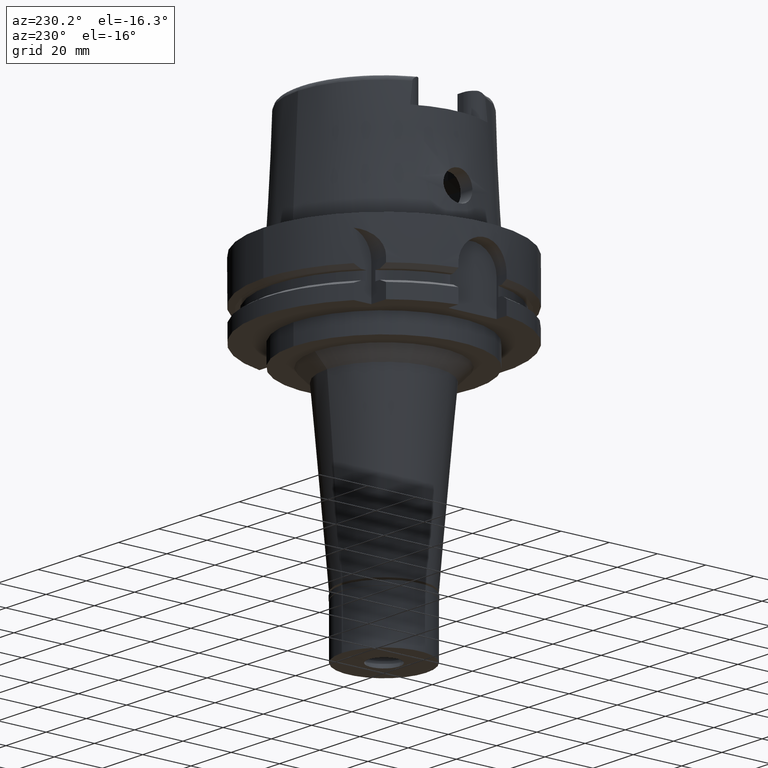
[diagram: clean part render]
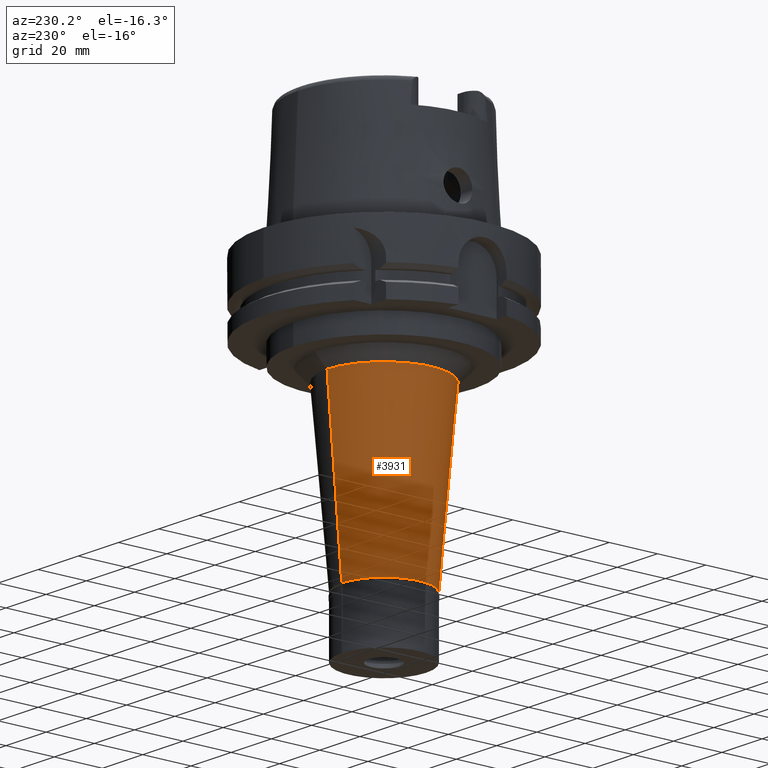
[diagram: same view with one face highlighted and labeled with its STEP entity id]
A machine part, auxiliary view. The second image highlights one B-rep face of the part: STEP entity #3931.
In plain terms, the highlighted conical surface has half-angle 5 deg.
Its self-contained STEP definition (entity closure, byte-faithful):
#99 = VECTOR ( 'NONE', #881, 1000.000000000000227 ) ;
#267 = CARTESIAN_POINT ( 'NONE',  ( 0.0000000000000000000, -17.50000000000000000, -111.6999999999999886 ) ) ;
#280 = AXIS2_PLACEMENT_3D ( 'NONE', #3035, #2576, #1382 ) ;
#400 = ORIENTED_EDGE ( 'NONE', *, *, #4267, .T. ) ;
#534 = VECTOR ( 'NONE', #5401, 1000.000000000000227 ) ;
#644 = DIRECTION ( 'NONE',  ( 0.0000000000000000000, 0.0000000000000000000, -1.000000000000000000 ) ) ;
#881 = DIRECTION ( 'NONE',  ( 0.0000000000000000000, -0.08715574274768382590, -0.9961946980917432137 ) ) ;
#1056 = DIRECTION ( 'NONE',  ( 0.0000000000000000000, 0.0000000000000000000, 1.000000000000000000 ) ) ;
#1071 = CARTESIAN_POINT ( 'NONE',  ( 0.0000000000000000000, 0.0000000000000000000, -42.00000000000000000 ) ) ;
#1353 = VERTEX_POINT ( 'NONE', #4544 ) ;
#1382 = DIRECTION ( 'NONE',  ( 0.0000000000000000000, 1.000000000000000000, 0.0000000000000000000 ) ) ;
#1664 = EDGE_LOOP ( 'NONE', ( #5490, #5573, #400, #4047 ) ) ;
#2075 = CARTESIAN_POINT ( 'NONE',  ( 0.0000000000000000000, 17.50000000000000000, -111.6999999999999886 ) ) ;
#2081 = AXIS2_PLACEMENT_3D ( 'NONE', #1071, #644, #4099 ) ;
#2168 = VERTEX_POINT ( 'NONE', #5538 ) ;
#2455 = CIRCLE ( 'NONE', #2081, 23.59795984775999855 ) ;
#2576 = DIRECTION ( 'NONE',  ( 0.0000000000000000000, 0.0000000000000000000, 1.000000000000000000 ) ) ;
#2585 = CARTESIAN_POINT ( 'NONE',  ( 0.0000000000000000000, 23.59795984775999855, -42.00000000000000000 ) ) ;
#2719 = CONICAL_SURFACE ( 'NONE', #280, 20.54897992388000105, 0.08726646259969973729 ) ;
#3035 = CARTESIAN_POINT ( 'NONE',  ( 0.0000000000000000000, 0.0000000000000000000, -76.85000000000000853 ) ) ;
#3109 = CIRCLE ( 'NONE', #3471, 17.50000000000000000 ) ;
#3225 = LINE ( 'NONE', #4494, #534 ) ;
#3274 = VERTEX_POINT ( 'NONE', #2075 ) ;
#3471 = AXIS2_PLACEMENT_3D ( 'NONE', #4566, #1056, #4595 ) ;
#3487 = EDGE_CURVE ( 'NONE', #3274, #4971, #3109, .T. ) ;
#3931 = ADVANCED_FACE ( 'NONE', ( #3986 ), #2719, .T. ) ;
#3986 = FACE_OUTER_BOUND ( 'NONE', #1664, .T. ) ;
#4047 = ORIENTED_EDGE ( 'NONE', *, *, #4339, .T. ) ;
#4099 = DIRECTION ( 'NONE',  ( 0.0000000000000000000, -1.000000000000000000, 0.0000000000000000000 ) ) ;
#4267 = EDGE_CURVE ( 'NONE', #1353, #2168, #2455, .T. ) ;
#4339 = EDGE_CURVE ( 'NONE', #2168, #3274, #4581, .T. ) ;
#4494 = CARTESIAN_POINT ( 'NONE',  ( 0.0000000000000000000, -23.59795984775999855, -42.00000000000000000 ) ) ;
#4544 = CARTESIAN_POINT ( 'NONE',  ( 0.0000000000000000000, -23.59795984775999855, -42.00000000000000000 ) ) ;
#4566 = CARTESIAN_POINT ( 'NONE',  ( 0.0000000000000000000, 0.0000000000000000000, -111.6999999999999886 ) ) ;
#4581 = LINE ( 'NONE', #2585, #99 ) ;
#4595 = DIRECTION ( 'NONE',  ( 0.0000000000000000000, 1.000000000000000000, 0.0000000000000000000 ) ) ;
#4971 = VERTEX_POINT ( 'NONE', #267 ) ;
#5401 = DIRECTION ( 'NONE',  ( 0.0000000000000000000, 0.08715574274768382590, -0.9961946980917432137 ) ) ;
#5490 = ORIENTED_EDGE ( 'NONE', *, *, #3487, .T. ) ;
#5538 = CARTESIAN_POINT ( 'NONE',  ( 0.0000000000000000000, 23.59795984775999855, -42.00000000000000000 ) ) ;
#5558 = EDGE_CURVE ( 'NONE', #1353, #4971, #3225, .T. ) ;
#5573 = ORIENTED_EDGE ( 'NONE', *, *, #5558, .F. ) ;